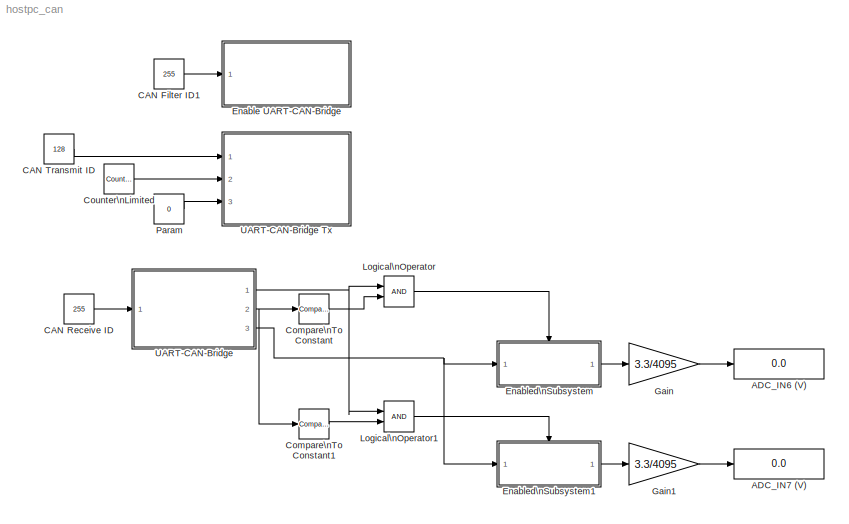
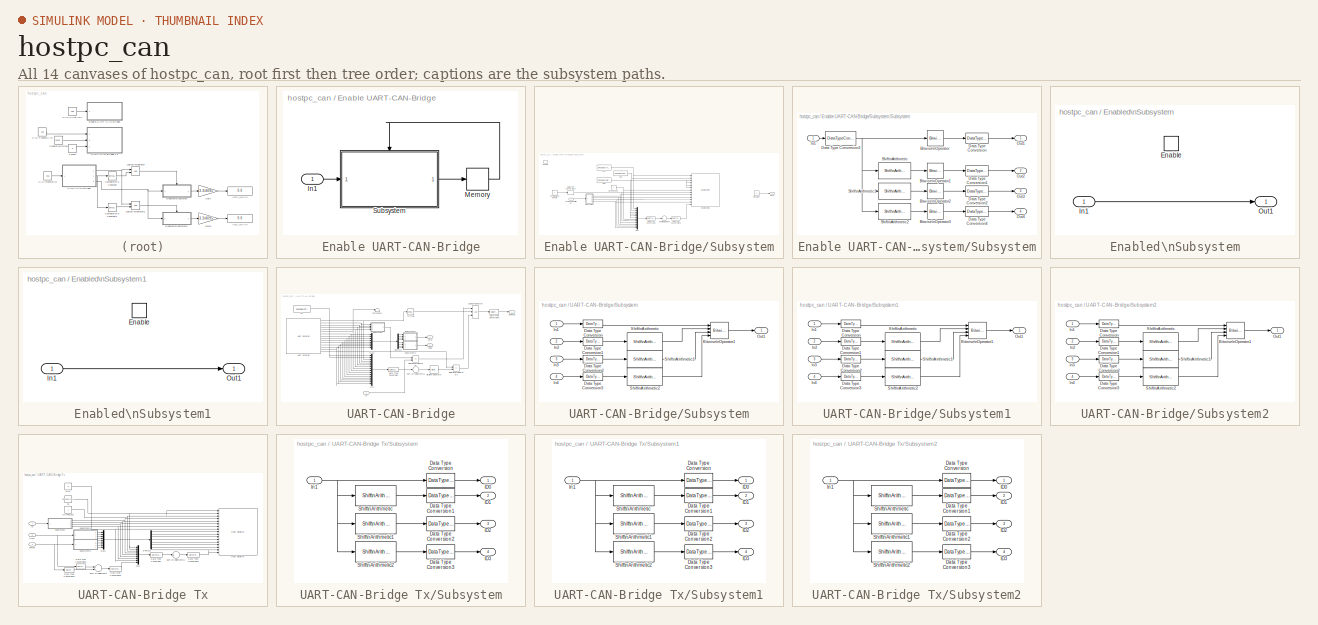
[diagram: thumbnail index - all 14 canvases of the model, root first then tree order]
MODEL hostpc_can
KIND model
BLOCK [Display] ADC_IN6 (V)
  Decimation = 1
  Lockdown = off
  Ports = [1]
BLOCK [Display] ADC_IN7 (V)
  Decimation = 1
  Lockdown = off
  Ports = [1]
BLOCK [Constant] CAN Filter ID1
  OutDataType = fixdt(1, 16)
  OutDataTypeMode = uint32
  OutDataTypeStr = uint32
  OutScaling = 2^0
  Value = 255
BLOCK [Constant] CAN Receive ID
  OutDataType = fixdt(1, 16)
  OutDataTypeMode = uint32
  OutDataTypeStr = uint32
  OutScaling = 2^0
  Value = 255
BLOCK [Constant] CAN Transmit ID
  OutDataType = fixdt(1, 16)
  OutDataTypeMode = uint32
  OutDataTypeStr = uint32
  OutScaling = 2^0
  Value = 128
BLOCK [Reference] Compare\nTo Constant  REF=simulink/Logic and Bit\nOperations/Compare\nTo Constant
  FunctionWithSeparateData = off
  LogicOutDataTypeMode = boolean
  Ports = [1, 1]
  RTWMemSecDataConstants = Inherit from model
  RTWMemSecDataInternal = Inherit from model
  RTWMemSecDataParameters = Inherit from model
  RTWMemSecFuncExecute = Inherit from model
  RTWMemSecFuncInitTerm = Inherit from model
  ShowPortLabels = FromPortIcon
  SourceBlock = simulink/Logic and Bit\nOperations/Compare\nTo Constant
  SourceType = Compare To Constant
  SystemSampleTime = -1
  ZeroCross = off
  const = 0
  relop = ==
BLOCK [Reference] Compare\nTo Constant1  REF=simulink/Logic and Bit\nOperations/Compare\nTo Constant
  FunctionWithSeparateData = off
  LogicOutDataTypeMode = boolean
  Ports = [1, 1]
  RTWMemSecDataConstants = Inherit from model
  RTWMemSecDataInternal = Inherit from model
  RTWMemSecDataParameters = Inherit from model
  RTWMemSecFuncExecute = Inherit from model
  RTWMemSecFuncInitTerm = Inherit from model
  ShowPortLabels = FromPortIcon
  SourceBlock = simulink/Logic and Bit\nOperations/Compare\nTo Constant
  SourceType = Compare To Constant
  SystemSampleTime = -1
  ZeroCross = off
  const = 1
  relop = ==
BLOCK [Reference] Counter\nLimited  REF=simulink/Sources/Counter\nLimited
  FunctionWithSeparateData = off
  Ports = [0, 1]
  RTWMemSecDataConstants = Inherit from model
  RTWMemSecDataInternal = Inherit from model
  RTWMemSecDataParameters = Inherit from model
  RTWMemSecFuncExecute = Inherit from model
  RTWMemSecFuncInitTerm = Inherit from model
  ShowPortLabels = FromPortIcon
  SourceBlock = simulink/Sources/Counter\nLimited
  SourceType = Counter Limited
  SystemSampleTime = -1
  tsamp = -1
  uplimit = 1
BLOCK [SubSystem] Enable UART-CAN-Bridge
  FunctionWithSeparateData = off
  MaskHideContents = off
  MinAlgLoopOccurrences = off
  Opaque = off
  Ports = [1]
  Priority = 0
  PropExecContextOutsideSubsystem = off
  RTWSystemCode = Auto
  RequestExecContextInheritance = off
BLOCK [Inport] Enable UART-CAN-Bridge/In1
  IconDisplay = Port number
BLOCK [Memory] Enable UART-CAN-Bridge/Memory
  InheritSampleTime = on
  LinearizeMemory = on
  X0 = 1
BLOCK [SubSystem] Enable UART-CAN-Bridge/Subsystem
  FunctionWithSeparateData = off
  MaskHideContents = off
  MinAlgLoopOccurrences = off
  Opaque = off
  Ports = [1, 1, 1]
  PropExecContextOutsideSubsystem = off
  RTWSystemCode = Auto
  RequestExecContextInheritance = off
BLOCK [Inport] Enable UART-CAN-Bridge/Subsystem/CAN Receive Filter ID
  IconDisplay = Port number
  OutDataType = fixdt(1, 16)
  OutScaling = 2^0
BLOCK [Constant] Enable UART-CAN-Bridge/Subsystem/Constant
  OutDataType = fixdt(1, 16)
  OutScaling = 2^0
  Value = 0
BLOCK [DataTypeConversion] Enable UART-CAN-Bridge/Subsystem/Data Type Conversion
  OutDataType = fixdt(1, 16)
  OutDataTypeMode = uint32
  OutDataTypeStr = uint32
  OutScaling = 2^0
  RndMeth = Floor
  SaturateOnIntegerOverflow = off
BLOCK [DataTypeConversion] Enable UART-CAN-Bridge/Subsystem/Data Type Conversion1
  OutDataType = fixdt(1, 16)
  OutDataTypeMode = uint8
  OutDataTypeStr = uint8
  OutScaling = 2^0
  RndMeth = Floor
  SaturateOnIntegerOverflow = off
BLOCK [DataTypeConversion] Enable UART-CAN-Bridge/Subsystem/Data Type Conversion2
  OutDataType = fixdt(1, 16)
  OutDataTypeMode = uint8
  OutDataTypeStr = uint8
  OutScaling = 2^0
  RndMeth = Floor
  SaturateOnIntegerOverflow = off
BLOCK [EnablePort] Enable UART-CAN-Bridge/Subsystem/Enable
  Ports = []
BLOCK [Constant] Enable UART-CAN-Bridge/Subsystem/H55
  OutDataType = fixdt(1, 16)
  OutDataTypeMode = uint8
  OutDataTypeStr = uint8
  OutScaling = 2^0
  Value = hex2dec('55')
BLOCK [Constant] Enable UART-CAN-Bridge/Subsystem/H88
  OutDataType = fixdt(1, 16)
  OutDataTypeMode = uint8
  OutDataTypeStr = uint8
  OutScaling = 2^0
  Value = hex2dec('88')
BLOCK [Constant] Enable UART-CAN-Bridge/Subsystem/HAA
  OutDataType = fixdt(1, 16)
  OutDataTypeMode = uint8
  OutDataTypeStr = uint8
  OutScaling = 2^0
  Value = hex2dec('AA')
BLOCK [Reference] Enable UART-CAN-Bridge/Subsystem/Host Serial Tx  REF=amg_usbconverter_n_connect_lib/Host Serial Tx
  Ports = [13]
  SourceBlock = amg_usbconverter_n_connect_lib/Host Serial Tx
  SourceType = amg_usbconverter_n_connect
  asciiformat = '%d %u %x'
  autoport = 'COM3'
  baudrate = 115200
  binheader = ''
  binterminator = ''
  blockid = EnableUARTCANBridgeSubsystemHostSerialTx
  cinputportlabel = 0
  compat = 0
  conf = tx
  coutputportlabel = A
  databits = 8
  enablecustomportlabel = off
  flowcontrol = None
  initialvalues = []
  inputportlabel = {'uint8','uint8','uint8','uint8','uint8','uint8','uint8','uint8','uint8','uint8','uint8','uint8','uint8'}
  inputporttype = [3 3 3 3 3 3 3 3 3 3 3 3 3]
  inputportwidth = [1 1 1 1 1 1 1 1 1 1 1 1 1]
  optionstring = [\"Param1\",\"Param1\"]
  outputportlabel = {}
  outputporttype = []
  outputportwidth = []
  packetmode = Binary
  parity = None
  port = <auto>
  portpinstr = 0
  porttype_double = 0
  porttype_int16 = 0
  porttype_int32 = 0
  porttype_int8 = 0
  porttype_single = 0
  porttype_uint16 = 0
  porttype_uint32 = 0
  porttype_uint8 = 13
  rx_asciiterminator = CRLF (0x0D 0x0A - \"<path>")
  sampletime = inf
  stopbit = 1
  timeout = 2
  transfer = Blocking
  tx_asciiterminator = CRLF (0x0D 0x0A - \"<path>")
BLOCK [Constant] Enable UART-CAN-Bridge/Subsystem/IDTYPE_STD
  OutDataType = fixdt(1, 16)
  OutDataTypeMode = uint8
  OutDataTypeStr = uint8
  OutScaling = 2^0
BLOCK [Mux] Enable UART-CAN-Bridge/Subsystem/Mux
  DisplayOption = bar
  Inputs = 12
  Ports = [12, 1]
BLOCK [Outport] Enable UART-CAN-Bridge/Subsystem/Once
  IconDisplay = Port number
  InitialOutput = 1
  OutDataType = fixdt(1, 16)
  OutScaling = 2^0
BLOCK [Constant] Enable UART-CAN-Bridge/Subsystem/Serial Bridge Enable
  OutDataType = fixdt(1, 16)
  OutDataTypeMode = uint8
  OutDataTypeStr = uint8
  OutScaling = 2^0
BLOCK [SubSystem] Enable UART-CAN-Bridge/Subsystem/Subsystem
  FunctionWithSeparateData = off
  MaskHideContents = off
  MinAlgLoopOccurrences = off
  Opaque = off
  Ports = [1, 4]
  PropExecContextOutsideSubsystem = off
  RTWSystemCode = Auto
  RequestExecContextInheritance = off
BLOCK [Reference] Enable UART-CAN-Bridge/Subsystem/Subsystem/Bitwise\nOperator  REF=simulink/Logic and Bit\nOperations/Bitwise\nOperator
  BitMask = 255
  BitMaskRealWorld = Stored Integer
  NumInputPorts = 1
  Ports = [1, 1]
  SourceBlock = simulink/Logic and Bit\nOperations/Bitwise\nOperator
  SourceType = Bitwise Operator
  UseBitMask = on
  logicop = AND
BLOCK [Reference] Enable UART-CAN-Bridge/Subsystem/Subsystem/Bitwise\nOperator1  REF=simulink/Logic and Bit\nOperations/Bitwise\nOperator
  BitMask = 255
  BitMaskRealWorld = Stored Integer
  NumInputPorts = 1
  Ports = [1, 1]
  SourceBlock = simulink/Logic and Bit\nOperations/Bitwise\nOperator
  SourceType = Bitwise Operator
  UseBitMask = on
  logicop = AND
BLOCK [Reference] Enable UART-CAN-Bridge/Subsystem/Subsystem/Bitwise\nOperator2  REF=simulink/Logic and Bit\nOperations/Bitwise\nOperator
  BitMask = 255
  BitMaskRealWorld = Stored Integer
  NumInputPorts = 1
  Ports = [1, 1]
  SourceBlock = simulink/Logic and Bit\nOperations/Bitwise\nOperator
  SourceType = Bitwise Operator
  UseBitMask = on
  logicop = AND
BLOCK [Reference] Enable UART-CAN-Bridge/Subsystem/Subsystem/Bitwise\nOperator3  REF=simulink/Logic and Bit\nOperations/Bitwise\nOperator
  BitMask = 255
  BitMaskRealWorld = Stored Integer
  NumInputPorts = 1
  Ports = [1, 1]
  SourceBlock = simulink/Logic and Bit\nOperations/Bitwise\nOperator
  SourceType = Bitwise Operator
  UseBitMask = on
  logicop = AND
BLOCK [DataTypeConversion] Enable UART-CAN-Bridge/Subsystem/Subsystem/Data Type Conversion
  OutDataType = fixdt(1, 16)
  OutDataTypeMode = uint8
  OutDataTypeStr = uint8
  OutScaling = 2^0
  RndMeth = Floor
  SaturateOnIntegerOverflow = off
BLOCK [DataTypeConversion] Enable UART-CAN-Bridge/Subsystem/Subsystem/Data Type Conversion1
  OutDataType = fixdt(1, 16)
  OutDataTypeMode = uint8
  OutDataTypeStr = uint8
  OutScaling = 2^0
  RndMeth = Floor
  SaturateOnIntegerOverflow = off
BLOCK [DataTypeConversion] Enable UART-CAN-Bridge/Subsystem/Subsystem/Data Type Conversion2
  OutDataType = fixdt(1, 16)
  OutDataTypeMode = uint8
  OutDataTypeStr = uint8
  OutScaling = 2^0
  RndMeth = Floor
  SaturateOnIntegerOverflow = off
BLOCK [DataTypeConversion] Enable UART-CAN-Bridge/Subsystem/Subsystem/Data Type Conversion3
  OutDataType = fixdt(1, 16)
  OutDataTypeMode = uint32
  OutDataTypeStr = uint32
  OutScaling = 2^0
  RndMeth = Floor
  SaturateOnIntegerOverflow = off
BLOCK [DataTypeConversion] Enable UART-CAN-Bridge/Subsystem/Subsystem/Data Type Conversion4
  OutDataType = fixdt(1, 16)
  OutDataTypeMode = uint8
  OutDataTypeStr = uint8
  OutScaling = 2^0
  RndMeth = Floor
  SaturateOnIntegerOverflow = off
BLOCK [Inport] Enable UART-CAN-Bridge/Subsystem/Subsystem/In1
  IconDisplay = Port number
BLOCK [Outport] Enable UART-CAN-Bridge/Subsystem/Subsystem/Out1
  IconDisplay = Port number
BLOCK [Outport] Enable UART-CAN-Bridge/Subsystem/Subsystem/Out2
  IconDisplay = Port number
  Port = 2
BLOCK [Outport] Enable UART-CAN-Bridge/Subsystem/Subsystem/Out3
  IconDisplay = Port number
  Port = 3
BLOCK [Outport] Enable UART-CAN-Bridge/Subsystem/Subsystem/Out4
  IconDisplay = Port number
  Port = 4
BLOCK [Reference] Enable UART-CAN-Bridge/Subsystem/Subsystem/Shift\nArithmetic  REF=simulink/Logic and Bit\nOperations/Shift\nArithmetic
  FunctionWithSeparateData = off
  Ports = [1, 1]
  RTWMemSecDataConstants = Inherit from model
  RTWMemSecDataInternal = Inherit from model
  RTWMemSecDataParameters = Inherit from model
  RTWMemSecFuncExecute = Inherit from model
  RTWMemSecFuncInitTerm = Inherit from model
  ShowPortLabels = FromPortIcon
  SourceBlock = simulink/Logic and Bit\nOperations/Shift\nArithmetic
  SourceType = Shift Arithmetic
  SystemSampleTime = -1
  nBinPtShiftRight = 0
  nBitShiftRight = 8
BLOCK [Reference] Enable UART-CAN-Bridge/Subsystem/Subsystem/Shift\nArithmetic1  REF=simulink/Logic and Bit\nOperations/Shift\nArithmetic
  FunctionWithSeparateData = off
  Ports = [1, 1]
  RTWMemSecDataConstants = Inherit from model
  RTWMemSecDataInternal = Inherit from model
  RTWMemSecDataParameters = Inherit from model
  RTWMemSecFuncExecute = Inherit from model
  RTWMemSecFuncInitTerm = Inherit from model
  ShowPortLabels = FromPortIcon
  SourceBlock = simulink/Logic and Bit\nOperations/Shift\nArithmetic
  SourceType = Shift Arithmetic
  SystemSampleTime = -1
  nBinPtShiftRight = 0
  nBitShiftRight = 16
BLOCK [Reference] Enable UART-CAN-Bridge/Subsystem/Subsystem/Shift\nArithmetic2  REF=simulink/Logic and Bit\nOperations/Shift\nArithmetic
  FunctionWithSeparateData = off
  Ports = [1, 1]
  RTWMemSecDataConstants = Inherit from model
  RTWMemSecDataInternal = Inherit from model
  RTWMemSecDataParameters = Inherit from model
  RTWMemSecFuncExecute = Inherit from model
  RTWMemSecFuncInitTerm = Inherit from model
  ShowPortLabels = FromPortIcon
  SourceBlock = simulink/Logic and Bit\nOperations/Shift\nArithmetic
  SourceType = Shift Arithmetic
  SystemSampleTime = -1
  nBinPtShiftRight = 0
  nBitShiftRight = 24
BLOCK [Sum] Enable UART-CAN-Bridge/Subsystem/Sum of\nElements
  InputSameDT = off
  Inputs = +
  OutDataType = fixdt(1, 16)
  OutDataTypeMode = Inherit via internal rule
  OutDataTypeStr = Inherit: Inherit via internal rule
  OutScaling = 2^-10
  Ports = [1, 1]
  SaturateOnIntegerOverflow = off
BLOCK [SubSystem] Enabled\nSubsystem
  FunctionWithSeparateData = off
  MaskHideContents = off
  MinAlgLoopOccurrences = off
  Opaque = off
  Ports = [1, 1, 1]
  PropExecContextOutsideSubsystem = off
  RTWSystemCode = Auto
  RequestExecContextInheritance = off
  TreatAsAtomicUnit = on
BLOCK [EnablePort] Enabled\nSubsystem/Enable
  Ports = []
BLOCK [Inport] Enabled\nSubsystem/In1
  IconDisplay = Port number
  OutDataType = fixdt(1, 16)
  OutScaling = 2^0
BLOCK [Outport] Enabled\nSubsystem/Out1
  IconDisplay = Port number
  OutDataType = fixdt(1, 16)
  OutScaling = 2^0
BLOCK [SubSystem] Enabled\nSubsystem1
  FunctionWithSeparateData = off
  MaskHideContents = off
  MinAlgLoopOccurrences = off
  Opaque = off
  Ports = [1, 1, 1]
  PropExecContextOutsideSubsystem = off
  RTWSystemCode = Auto
  RequestExecContextInheritance = off
  TreatAsAtomicUnit = on
BLOCK [EnablePort] Enabled\nSubsystem1/Enable
  Ports = []
BLOCK [Inport] Enabled\nSubsystem1/In1
  IconDisplay = Port number
  OutDataType = fixdt(1, 16)
  OutScaling = 2^0
BLOCK [Outport] Enabled\nSubsystem1/Out1
  IconDisplay = Port number
  OutDataType = fixdt(1, 16)
  OutScaling = 2^0
BLOCK [Gain] Gain
  Gain = 3.3/4095
  OutDataType = fixdt(1, 16)
  OutDataTypeMode = Inherit via internal rule
  OutDataTypeStr = Inherit: Inherit via internal rule
  OutScaling = 2^0
  ParamDataTypeStr = Inherit: Inherit via internal rule
  ParameterDataType = fixdt(1, 16)
  ParameterDataTypeMode = Inherit via internal rule
  ParameterScaling = 2^0
  SaturateOnIntegerOverflow = off
BLOCK [Gain] Gain1
  Gain = 3.3/4095
  OutDataType = fixdt(1, 16)
  OutDataTypeMode = Inherit via internal rule
  OutDataTypeStr = Inherit: Inherit via internal rule
  OutScaling = 2^0
  ParamDataTypeStr = Inherit: Inherit via internal rule
  ParameterDataType = fixdt(1, 16)
  ParameterDataTypeMode = Inherit via internal rule
  ParameterScaling = 2^0
  SaturateOnIntegerOverflow = off
BLOCK [Logic] Logical\nOperator
  AllPortsSameDT = off
  LogicDataType = fixdt(0, 8)
  OutDataTypeMode = boolean
  OutDataTypeStr = boolean
  Ports = [2, 1]
BLOCK [Logic] Logical\nOperator1
  AllPortsSameDT = off
  LogicDataType = fixdt(0, 8)
  OutDataTypeMode = boolean
  OutDataTypeStr = boolean
  Ports = [2, 1]
BLOCK [Constant] Param
  OutDataType = fixdt(1, 16)
  OutDataTypeMode = uint32
  OutDataTypeStr = uint32
  OutScaling = 2^0
  Value = 0
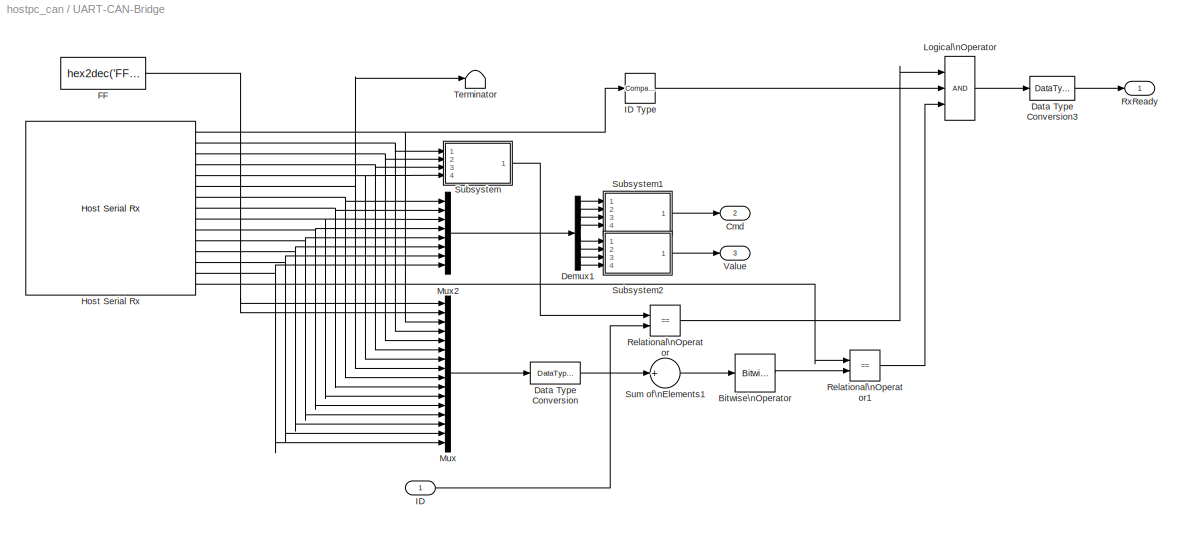
BLOCK [SubSystem] UART-CAN-Bridge
  FunctionWithSeparateData = off
  MaskHideContents = off
  MinAlgLoopOccurrences = off
  Opaque = off
  Ports = [1, 3]
  Priority = 2
  PropExecContextOutsideSubsystem = off
  RTWSystemCode = Auto
  RequestExecContextInheritance = off
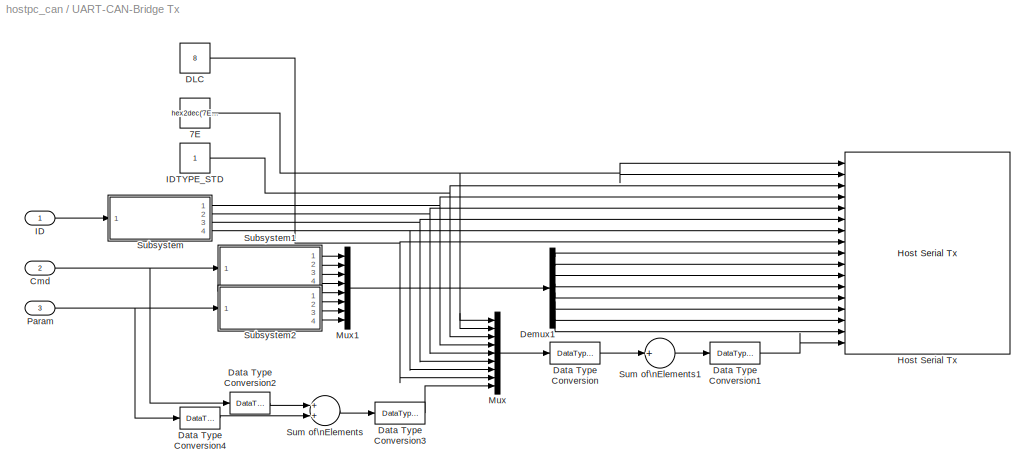
BLOCK [SubSystem] UART-CAN-Bridge Tx
  FunctionWithSeparateData = off
  MaskHideContents = off
  MinAlgLoopOccurrences = off
  Opaque = off
  Ports = [3]
  Priority = 1
  PropExecContextOutsideSubsystem = off
  RTWSystemCode = Auto
  RequestExecContextInheritance = off
BLOCK [Constant] UART-CAN-Bridge Tx/7E
  OutDataType = fixdt(1, 16)
  OutDataTypeMode = uint8
  OutDataTypeStr = uint8
  OutScaling = 2^0
  Value = hex2dec('7E')
BLOCK [Inport] UART-CAN-Bridge Tx/Cmd
  IconDisplay = Port number
  Port = 2
BLOCK [Constant] UART-CAN-Bridge Tx/DLC
  OutDataType = fixdt(1, 16)
  OutDataTypeMode = uint8
  OutDataTypeStr = uint8
  OutScaling = 2^0
  Value = 8
BLOCK [DataTypeConversion] UART-CAN-Bridge Tx/Data Type Conversion
  OutDataType = fixdt(1, 16)
  OutDataTypeMode = uint32
  OutDataTypeStr = uint32
  OutScaling = 2^0
  RndMeth = Floor
  SaturateOnIntegerOverflow = off
BLOCK [DataTypeConversion] UART-CAN-Bridge Tx/Data Type Conversion1
  OutDataType = fixdt(1, 16)
  OutDataTypeMode = uint8
  OutDataTypeStr = uint8
  OutScaling = 2^0
  RndMeth = Floor
  SaturateOnIntegerOverflow = off
BLOCK [DataTypeConversion] UART-CAN-Bridge Tx/Data Type Conversion2
  OutDataType = fixdt(1, 16)
  OutDataTypeMode = uint32
  OutDataTypeStr = uint32
  OutScaling = 2^0
  RndMeth = Floor
  SaturateOnIntegerOverflow = off
BLOCK [DataTypeConversion] UART-CAN-Bridge Tx/Data Type Conversion3
  OutDataType = fixdt(1, 16)
  OutDataTypeMode = uint8
  OutDataTypeStr = uint8
  OutScaling = 2^0
  RndMeth = Floor
  SaturateOnIntegerOverflow = off
BLOCK [DataTypeConversion] UART-CAN-Bridge Tx/Data Type Conversion4
  OutDataType = fixdt(1, 16)
  OutDataTypeMode = uint32
  OutDataTypeStr = uint32
  OutScaling = 2^0
  RndMeth = Floor
  SaturateOnIntegerOverflow = off
BLOCK [Demux] UART-CAN-Bridge Tx/Demux1
  DisplayOption = bar
  Outputs = 8
  Ports = [1, 8]
BLOCK [Reference] UART-CAN-Bridge Tx/Host Serial Tx  REF=amg_usbconverter_n_connect_lib/Host Serial Tx
  Ports = [17]
  SourceBlock = amg_usbconverter_n_connect_lib/Host Serial Tx
  SourceType = amg_usbconverter_n_connect
  asciiformat = '%d %u %x'
  autoport = 'COM3'
  baudrate = 115200
  binheader = ''
  binterminator = ''
  blockid = UARTCANBridgeTxHostSerialTx
  cinputportlabel = 0
  compat = 0
  conf = tx
  coutputportlabel = A
  databits = 8
  enablecustomportlabel = off
  flowcontrol = None
  initialvalues = []
  inputportlabel = {'uint8','uint8','uint8','uint8','uint8','uint8','uint8','uint8','uint8','uint8','uint8','uint8','uint8','uint8','uint8','uint8','uint8'}
  inputporttype = [3 3 3 3 3 3 3 3 3 3 3 3 3 3 3 3 3]
  inputportwidth = [1 1 1 1 1 1 1 1 1 1 1 1 1 1 1 1 1]
  optionstring = [\"Param1\",\"Param1\"]
  outputportlabel = {}
  outputporttype = []
  outputportwidth = []
  packetmode = Binary
  parity = None
  port = <auto>
  portpinstr = 0
  porttype_double = 0
  porttype_int16 = 0
  porttype_int32 = 0
  porttype_int8 = 0
  porttype_single = 0
  porttype_uint16 = 0
  porttype_uint32 = 0
  porttype_uint8 = 17
  rx_asciiterminator = CRLF (0x0D 0x0A - \"<path>")
  sampletime = inf
  stopbit = 1
  timeout = 2
  transfer = Blocking
  tx_asciiterminator = CRLF (0x0D 0x0A - \"<path>")
BLOCK [Inport] UART-CAN-Bridge Tx/ID
  IconDisplay = Port number
BLOCK [Constant] UART-CAN-Bridge Tx/IDTYPE_STD
  OutDataType = fixdt(1, 16)
  OutDataTypeMode = uint8
  OutDataTypeStr = uint8
  OutScaling = 2^0
BLOCK [Mux] UART-CAN-Bridge Tx/Mux
  DisplayOption = bar
  Inputs = 9
  Ports = [9, 1]
BLOCK [Mux] UART-CAN-Bridge Tx/Mux1
  DisplayOption = bar
  Inputs = 8
  Ports = [8, 1]
BLOCK [Inport] UART-CAN-Bridge Tx/Param
  IconDisplay = Port number
  Port = 3
BLOCK [SubSystem] UART-CAN-Bridge Tx/Subsystem
  FunctionWithSeparateData = off
  MaskHideContents = off
  MinAlgLoopOccurrences = off
  Opaque = off
  Ports = [1, 4]
  PropExecContextOutsideSubsystem = off
  RTWSystemCode = Auto
  RequestExecContextInheritance = off
BLOCK [DataTypeConversion] UART-CAN-Bridge Tx/Subsystem/Data Type Conversion
  OutDataType = fixdt(1, 16)
  OutDataTypeMode = uint8
  OutDataTypeStr = uint8
  OutScaling = 2^0
  RndMeth = Floor
  SaturateOnIntegerOverflow = off
BLOCK [DataTypeConversion] UART-CAN-Bridge Tx/Subsystem/Data Type Conversion1
  OutDataType = fixdt(1, 16)
  OutDataTypeMode = uint8
  OutDataTypeStr = uint8
  OutScaling = 2^0
  RndMeth = Floor
  SaturateOnIntegerOverflow = off
BLOCK [DataTypeConversion] UART-CAN-Bridge Tx/Subsystem/Data Type Conversion2
  OutDataType = fixdt(1, 16)
  OutDataTypeMode = uint8
  OutDataTypeStr = uint8
  OutScaling = 2^0
  RndMeth = Floor
  SaturateOnIntegerOverflow = off
BLOCK [DataTypeConversion] UART-CAN-Bridge Tx/Subsystem/Data Type Conversion3
  OutDataType = fixdt(1, 16)
  OutDataTypeMode = uint8
  OutDataTypeStr = uint8
  OutScaling = 2^0
  RndMeth = Floor
  SaturateOnIntegerOverflow = off
BLOCK [Outport] UART-CAN-Bridge Tx/Subsystem/ID0
  IconDisplay = Port number
  OutDataType = fixdt(1, 16)
  OutScaling = 2^0
BLOCK [Outport] UART-CAN-Bridge Tx/Subsystem/ID1
  IconDisplay = Port number
  OutDataType = fixdt(1, 16)
  OutScaling = 2^0
  Port = 2
BLOCK [Outport] UART-CAN-Bridge Tx/Subsystem/ID2
  IconDisplay = Port number
  OutDataType = fixdt(1, 16)
  OutScaling = 2^0
  Port = 3
BLOCK [Outport] UART-CAN-Bridge Tx/Subsystem/ID3
  IconDisplay = Port number
  OutDataType = fixdt(1, 16)
  OutScaling = 2^0
  Port = 4
BLOCK [Inport] UART-CAN-Bridge Tx/Subsystem/In1
  IconDisplay = Port number
  OutDataType = fixdt(1, 16)
  OutScaling = 2^0
BLOCK [Reference] UART-CAN-Bridge Tx/Subsystem/Shift\nArithmetic  REF=simulink/Logic and Bit\nOperations/Shift\nArithmetic
  FunctionWithSeparateData = off
  Ports = [1, 1]
  RTWMemSecDataConstants = Inherit from model
  RTWMemSecDataInternal = Inherit from model
  RTWMemSecDataParameters = Inherit from model
  RTWMemSecFuncExecute = Inherit from model
  RTWMemSecFuncInitTerm = Inherit from model
  ShowPortLabels = FromPortIcon
  SourceBlock = simulink/Logic and Bit\nOperations/Shift\nArithmetic
  SourceType = Shift Arithmetic
  SystemSampleTime = -1
  nBinPtShiftRight = 0
  nBitShiftRight = 8
BLOCK [Reference] UART-CAN-Bridge Tx/Subsystem/Shift\nArithmetic1  REF=simulink/Logic and Bit\nOperations/Shift\nArithmetic
  FunctionWithSeparateData = off
  Ports = [1, 1]
  RTWMemSecDataConstants = Inherit from model
  RTWMemSecDataInternal = Inherit from model
  RTWMemSecDataParameters = Inherit from model
  RTWMemSecFuncExecute = Inherit from model
  RTWMemSecFuncInitTerm = Inherit from model
  ShowPortLabels = FromPortIcon
  SourceBlock = simulink/Logic and Bit\nOperations/Shift\nArithmetic
  SourceType = Shift Arithmetic
  SystemSampleTime = -1
  nBinPtShiftRight = 0
  nBitShiftRight = 16
BLOCK [Reference] UART-CAN-Bridge Tx/Subsystem/Shift\nArithmetic2  REF=simulink/Logic and Bit\nOperations/Shift\nArithmetic
  FunctionWithSeparateData = off
  Ports = [1, 1]
  RTWMemSecDataConstants = Inherit from model
  RTWMemSecDataInternal = Inherit from model
  RTWMemSecDataParameters = Inherit from model
  RTWMemSecFuncExecute = Inherit from model
  RTWMemSecFuncInitTerm = Inherit from model
  ShowPortLabels = FromPortIcon
  SourceBlock = simulink/Logic and Bit\nOperations/Shift\nArithmetic
  SourceType = Shift Arithmetic
  SystemSampleTime = -1
  nBinPtShiftRight = 0
  nBitShiftRight = 24
BLOCK [SubSystem] UART-CAN-Bridge Tx/Subsystem1
  FunctionWithSeparateData = off
  MaskHideContents = off
  MinAlgLoopOccurrences = off
  Opaque = off
  Ports = [1, 4]
  PropExecContextOutsideSubsystem = off
  RTWSystemCode = Auto
  RequestExecContextInheritance = off
BLOCK [DataTypeConversion] UART-CAN-Bridge Tx/Subsystem1/Data Type Conversion
  OutDataType = fixdt(1, 16)
  OutDataTypeMode = uint8
  OutDataTypeStr = uint8
  OutScaling = 2^0
  RndMeth = Floor
  SaturateOnIntegerOverflow = off
BLOCK [DataTypeConversion] UART-CAN-Bridge Tx/Subsystem1/Data Type Conversion1
  OutDataType = fixdt(1, 16)
  OutDataTypeMode = uint8
  OutDataTypeStr = uint8
  OutScaling = 2^0
  RndMeth = Floor
  SaturateOnIntegerOverflow = off
BLOCK [DataTypeConversion] UART-CAN-Bridge Tx/Subsystem1/Data Type Conversion2
  OutDataType = fixdt(1, 16)
  OutDataTypeMode = uint8
  OutDataTypeStr = uint8
  OutScaling = 2^0
  RndMeth = Floor
  SaturateOnIntegerOverflow = off
BLOCK [DataTypeConversion] UART-CAN-Bridge Tx/Subsystem1/Data Type Conversion3
  OutDataType = fixdt(1, 16)
  OutDataTypeMode = uint8
  OutDataTypeStr = uint8
  OutScaling = 2^0
  RndMeth = Floor
  SaturateOnIntegerOverflow = off
BLOCK [Outport] UART-CAN-Bridge Tx/Subsystem1/ID0
  IconDisplay = Port number
  OutDataType = fixdt(1, 16)
  OutScaling = 2^0
BLOCK [Outport] UART-CAN-Bridge Tx/Subsystem1/ID1
  IconDisplay = Port number
  OutDataType = fixdt(1, 16)
  OutScaling = 2^0
  Port = 2
BLOCK [Outport] UART-CAN-Bridge Tx/Subsystem1/ID2
  IconDisplay = Port number
  OutDataType = fixdt(1, 16)
  OutScaling = 2^0
  Port = 3
BLOCK [Outport] UART-CAN-Bridge Tx/Subsystem1/ID3
  IconDisplay = Port number
  OutDataType = fixdt(1, 16)
  OutScaling = 2^0
  Port = 4
BLOCK [Inport] UART-CAN-Bridge Tx/Subsystem1/In1
  IconDisplay = Port number
  OutDataType = fixdt(1, 16)
  OutScaling = 2^0
BLOCK [Reference] UART-CAN-Bridge Tx/Subsystem1/Shift\nArithmetic  REF=simulink/Logic and Bit\nOperations/Shift\nArithmetic
  FunctionWithSeparateData = off
  Ports = [1, 1]
  RTWMemSecDataConstants = Inherit from model
  RTWMemSecDataInternal = Inherit from model
  RTWMemSecDataParameters = Inherit from model
  RTWMemSecFuncExecute = Inherit from model
  RTWMemSecFuncInitTerm = Inherit from model
  ShowPortLabels = FromPortIcon
  SourceBlock = simulink/Logic and Bit\nOperations/Shift\nArithmetic
  SourceType = Shift Arithmetic
  SystemSampleTime = -1
  nBinPtShiftRight = 0
  nBitShiftRight = 8
BLOCK [Reference] UART-CAN-Bridge Tx/Subsystem1/Shift\nArithmetic1  REF=simulink/Logic and Bit\nOperations/Shift\nArithmetic
  FunctionWithSeparateData = off
  Ports = [1, 1]
  RTWMemSecDataConstants = Inherit from model
  RTWMemSecDataInternal = Inherit from model
  RTWMemSecDataParameters = Inherit from model
  RTWMemSecFuncExecute = Inherit from model
  RTWMemSecFuncInitTerm = Inherit from model
  ShowPortLabels = FromPortIcon
  SourceBlock = simulink/Logic and Bit\nOperations/Shift\nArithmetic
  SourceType = Shift Arithmetic
  SystemSampleTime = -1
  nBinPtShiftRight = 0
  nBitShiftRight = 16
BLOCK [Reference] UART-CAN-Bridge Tx/Subsystem1/Shift\nArithmetic2  REF=simulink/Logic and Bit\nOperations/Shift\nArithmetic
  FunctionWithSeparateData = off
  Ports = [1, 1]
  RTWMemSecDataConstants = Inherit from model
  RTWMemSecDataInternal = Inherit from model
  RTWMemSecDataParameters = Inherit from model
  RTWMemSecFuncExecute = Inherit from model
  RTWMemSecFuncInitTerm = Inherit from model
  ShowPortLabels = FromPortIcon
  SourceBlock = simulink/Logic and Bit\nOperations/Shift\nArithmetic
  SourceType = Shift Arithmetic
  SystemSampleTime = -1
  nBinPtShiftRight = 0
  nBitShiftRight = 24
BLOCK [SubSystem] UART-CAN-Bridge Tx/Subsystem2
  FunctionWithSeparateData = off
  MaskHideContents = off
  MinAlgLoopOccurrences = off
  Opaque = off
  Ports = [1, 4]
  PropExecContextOutsideSubsystem = off
  RTWSystemCode = Auto
  RequestExecContextInheritance = off
BLOCK [DataTypeConversion] UART-CAN-Bridge Tx/Subsystem2/Data Type Conversion
  OutDataType = fixdt(1, 16)
  OutDataTypeMode = uint8
  OutDataTypeStr = uint8
  OutScaling = 2^0
  RndMeth = Floor
  SaturateOnIntegerOverflow = off
BLOCK [DataTypeConversion] UART-CAN-Bridge Tx/Subsystem2/Data Type Conversion1
  OutDataType = fixdt(1, 16)
  OutDataTypeMode = uint8
  OutDataTypeStr = uint8
  OutScaling = 2^0
  RndMeth = Floor
  SaturateOnIntegerOverflow = off
BLOCK [DataTypeConversion] UART-CAN-Bridge Tx/Subsystem2/Data Type Conversion2
  OutDataType = fixdt(1, 16)
  OutDataTypeMode = uint8
  OutDataTypeStr = uint8
  OutScaling = 2^0
  RndMeth = Floor
  SaturateOnIntegerOverflow = off
BLOCK [DataTypeConversion] UART-CAN-Bridge Tx/Subsystem2/Data Type Conversion3
  OutDataType = fixdt(1, 16)
  OutDataTypeMode = uint8
  OutDataTypeStr = uint8
  OutScaling = 2^0
  RndMeth = Floor
  SaturateOnIntegerOverflow = off
BLOCK [Outport] UART-CAN-Bridge Tx/Subsystem2/ID0
  IconDisplay = Port number
  OutDataType = fixdt(1, 16)
  OutScaling = 2^0
BLOCK [Outport] UART-CAN-Bridge Tx/Subsystem2/ID1
  IconDisplay = Port number
  OutDataType = fixdt(1, 16)
  OutScaling = 2^0
  Port = 2
BLOCK [Outport] UART-CAN-Bridge Tx/Subsystem2/ID2
  IconDisplay = Port number
  OutDataType = fixdt(1, 16)
  OutScaling = 2^0
  Port = 3
BLOCK [Outport] UART-CAN-Bridge Tx/Subsystem2/ID3
  IconDisplay = Port number
  OutDataType = fixdt(1, 16)
  OutScaling = 2^0
  Port = 4
BLOCK [Inport] UART-CAN-Bridge Tx/Subsystem2/In1
  IconDisplay = Port number
  OutDataType = fixdt(1, 16)
  OutScaling = 2^0
BLOCK [Reference] UART-CAN-Bridge Tx/Subsystem2/Shift\nArithmetic  REF=simulink/Logic and Bit\nOperations/Shift\nArithmetic
  FunctionWithSeparateData = off
  Ports = [1, 1]
  RTWMemSecDataConstants = Inherit from model
  RTWMemSecDataInternal = Inherit from model
  RTWMemSecDataParameters = Inherit from model
  RTWMemSecFuncExecute = Inherit from model
  RTWMemSecFuncInitTerm = Inherit from model
  ShowPortLabels = FromPortIcon
  SourceBlock = simulink/Logic and Bit\nOperations/Shift\nArithmetic
  SourceType = Shift Arithmetic
  SystemSampleTime = -1
  nBinPtShiftRight = 0
  nBitShiftRight = 8
BLOCK [Reference] UART-CAN-Bridge Tx/Subsystem2/Shift\nArithmetic1  REF=simulink/Logic and Bit\nOperations/Shift\nArithmetic
  FunctionWithSeparateData = off
  Ports = [1, 1]
  RTWMemSecDataConstants = Inherit from model
  RTWMemSecDataInternal = Inherit from model
  RTWMemSecDataParameters = Inherit from model
  RTWMemSecFuncExecute = Inherit from model
  RTWMemSecFuncInitTerm = Inherit from model
  ShowPortLabels = FromPortIcon
  SourceBlock = simulink/Logic and Bit\nOperations/Shift\nArithmetic
  SourceType = Shift Arithmetic
  SystemSampleTime = -1
  nBinPtShiftRight = 0
  nBitShiftRight = 16
BLOCK [Reference] UART-CAN-Bridge Tx/Subsystem2/Shift\nArithmetic2  REF=simulink/Logic and Bit\nOperations/Shift\nArithmetic
  FunctionWithSeparateData = off
  Ports = [1, 1]
  RTWMemSecDataConstants = Inherit from model
  RTWMemSecDataInternal = Inherit from model
  RTWMemSecDataParameters = Inherit from model
  RTWMemSecFuncExecute = Inherit from model
  RTWMemSecFuncInitTerm = Inherit from model
  ShowPortLabels = FromPortIcon
  SourceBlock = simulink/Logic and Bit\nOperations/Shift\nArithmetic
  SourceType = Shift Arithmetic
  SystemSampleTime = -1
  nBinPtShiftRight = 0
  nBitShiftRight = 24
BLOCK [Sum] UART-CAN-Bridge Tx/Sum of\nElements
  InputSameDT = off
  OutDataType = fixdt(1, 16)
  OutDataTypeMode = Inherit via internal rule
  OutDataTypeStr = Inherit: Inherit via internal rule
  OutScaling = 2^-10
  Ports = [2, 1]
  SaturateOnIntegerOverflow = off
BLOCK [Sum] UART-CAN-Bridge Tx/Sum of\nElements1
  InputSameDT = off
  Inputs = +
  OutDataType = fixdt(1, 16)
  OutDataTypeMode = Inherit via internal rule
  OutDataTypeStr = Inherit: Inherit via internal rule
  OutScaling = 2^-10
  Ports = [1, 1]
  SaturateOnIntegerOverflow = off
BLOCK [Reference] UART-CAN-Bridge/Bitwise\nOperator  REF=simulink/Logic and Bit\nOperations/Bitwise\nOperator
  BitMask = 255
  BitMaskRealWorld = Stored Integer
  NumInputPorts = 1
  Ports = [1, 1]
  SourceBlock = simulink/Logic and Bit\nOperations/Bitwise\nOperator
  SourceType = Bitwise Operator
  UseBitMask = on
  logicop = AND
BLOCK [Outport] UART-CAN-Bridge/Cmd
  IconDisplay = Port number
  Port = 2
BLOCK [DataTypeConversion] UART-CAN-Bridge/Data Type Conversion
  OutDataType = fixdt(1, 16)
  OutDataTypeMode = uint32
  OutDataTypeStr = uint32
  OutScaling = 2^0
  RndMeth = Floor
  SaturateOnIntegerOverflow = off
BLOCK [DataTypeConversion] UART-CAN-Bridge/Data Type Conversion3
  OutDataType = fixdt(1, 16)
  OutDataTypeMode = uint32
  OutDataTypeStr = uint32
  OutScaling = 2^0
  RndMeth = Floor
  SaturateOnIntegerOverflow = off
BLOCK [Demux] UART-CAN-Bridge/Demux1
  DisplayOption = bar
  Outputs = 8
  Ports = [1, 8]
BLOCK [Constant] UART-CAN-Bridge/FF
  OutDataType = fixdt(1, 16)
  OutDataTypeMode = uint8
  OutDataTypeStr = uint8
  OutScaling = 2^0
  Value = hex2dec('FF')
BLOCK [Reference] UART-CAN-Bridge/Host Serial Rx  REF=amg_usbconverter_n_connect_lib/Host Serial Rx
  Ports = [0, 15]
  SourceBlock = amg_usbconverter_n_connect_lib/Host Serial Rx
  SourceType = amg_usbconverter_n_connect
  asciiformat = '%d %u %x'
  autoport = 'COM3'
  baudrate = 115200
  binheader = 'FF FF'
  binterminator = ''
  blockid = UARTCANBridgeHostSerialRx
  cinputportlabel = 0
  compat = 0
  conf = rx
  coutputportlabel = A
  databits = 8
  enablecustomportlabel = off
  flowcontrol = None
  initialvalues = [0]
  inputportlabel = {}
  inputporttype = []
  inputportwidth = []
  optionstring = [\"Param1\",\"Param1\"]
  outputportlabel = {'uint8','uint8','uint8','uint8','uint8','uint8','uint8','uint8','uint8','uint8','uint8','uint8','uint8','uint8','uint8'}
  outputporttype = [3 3 3 3 3 3 3 3 3 3 3 3 3 3 3]
  outputportwidth = [1 1 1 1 1 1 1 1 1 1 1 1 1 1 1]
  packetmode = Binary
  parity = None
  port = <auto>
  portpinstr = 0
  porttype_double = 0
  porttype_int16 = 0
  porttype_int32 = 0
  porttype_int8 = 0
  porttype_single = 0
  porttype_uint16 = 0
  porttype_uint32 = 0
  porttype_uint8 = 15
  rx_asciiterminator = CRLF (0x0D 0x0A - \"<path>")
  sampletime = inf
  stopbit = 1
  timeout = 2
  transfer = Blocking
  tx_asciiterminator = CRLF (0x0D 0x0A - \"<path>")
BLOCK [Inport] UART-CAN-Bridge/ID
  IconDisplay = Port number
  OutDataType = fixdt(1, 16)
  OutScaling = 2^0
BLOCK [Reference] UART-CAN-Bridge/ID Type  REF=simulink/Logic and Bit\nOperations/Compare\nTo Constant
  FunctionWithSeparateData = off
  LogicOutDataTypeMode = uint8
  Ports = [1, 1]
  RTWMemSecDataConstants = Inherit from model
  RTWMemSecDataInternal = Inherit from model
  RTWMemSecDataParameters = Inherit from model
  RTWMemSecFuncExecute = Inherit from model
  RTWMemSecFuncInitTerm = Inherit from model
  ShowPortLabels = FromPortIcon
  SourceBlock = simulink/Logic and Bit\nOperations/Compare\nTo Constant
  SourceType = Compare To Constant
  SystemSampleTime = -1
  ZeroCross = off
  const = 1
  relop = ==
BLOCK [Logic] UART-CAN-Bridge/Logical\nOperator
  AllPortsSameDT = off
  Inputs = 3
  LogicDataType = fixdt(0, 8)
  OutDataTypeMode = boolean
  OutDataTypeStr = boolean
  Ports = [3, 1]
BLOCK [Mux] UART-CAN-Bridge/Mux
  DisplayOption = bar
  Inputs = 16
  Ports = [16, 1]
BLOCK [Mux] UART-CAN-Bridge/Mux2
  DisplayOption = bar
  Inputs = 8
  Ports = [8, 1]
BLOCK [RelationalOperator] UART-CAN-Bridge/Relational\nOperator
  InputSameDT = off
  LogicDataType = fixdt(0, 8)
  LogicOutDataTypeMode = boolean
  Operator = ==
  OutDataTypeStr = boolean
BLOCK [RelationalOperator] UART-CAN-Bridge/Relational\nOperator1
  InputSameDT = off
  LogicDataType = fixdt(0, 8)
  LogicOutDataTypeMode = boolean
  Operator = ==
  OutDataTypeStr = boolean
BLOCK [Outport] UART-CAN-Bridge/RxReady
  IconDisplay = Port number
BLOCK [SubSystem] UART-CAN-Bridge/Subsystem
  FunctionWithSeparateData = off
  MaskHideContents = off
  MinAlgLoopOccurrences = off
  Opaque = off
  Ports = [4, 1]
  PropExecContextOutsideSubsystem = off
  RTWSystemCode = Auto
  RequestExecContextInheritance = off
BLOCK [Reference] UART-CAN-Bridge/Subsystem/Bitwise\nOperator1  REF=simulink/Logic and Bit\nOperations/Bitwise\nOperator
  BitMask = bin2dec('11011001')
  BitMaskRealWorld = Stored Integer
  NumInputPorts = 4
  Ports = [4, 1]
  SourceBlock = simulink/Logic and Bit\nOperations/Bitwise\nOperator
  SourceType = Bitwise Operator
  UseBitMask = off
  logicop = OR
BLOCK [DataTypeConversion] UART-CAN-Bridge/Subsystem/Data Type Conversion
  OutDataType = fixdt(1, 16)
  OutDataTypeMode = uint32
  OutDataTypeStr = uint32
  OutScaling = 2^0
  RndMeth = Floor
  SaturateOnIntegerOverflow = off
BLOCK [DataTypeConversion] UART-CAN-Bridge/Subsystem/Data Type Conversion1
  OutDataType = fixdt(1, 16)
  OutDataTypeMode = uint32
  OutDataTypeStr = uint32
  OutScaling = 2^0
  RndMeth = Floor
  SaturateOnIntegerOverflow = off
BLOCK [DataTypeConversion] UART-CAN-Bridge/Subsystem/Data Type Conversion2
  OutDataType = fixdt(1, 16)
  OutDataTypeMode = uint32
  OutDataTypeStr = uint32
  OutScaling = 2^0
  RndMeth = Floor
  SaturateOnIntegerOverflow = off
BLOCK [DataTypeConversion] UART-CAN-Bridge/Subsystem/Data Type Conversion3
  OutDataType = fixdt(1, 16)
  OutDataTypeMode = uint32
  OutDataTypeStr = uint32
  OutScaling = 2^0
  RndMeth = Floor
  SaturateOnIntegerOverflow = off
BLOCK [Inport] UART-CAN-Bridge/Subsystem/In1
  IconDisplay = Port number
  OutDataType = fixdt(1, 16)
  OutScaling = 2^0
BLOCK [Inport] UART-CAN-Bridge/Subsystem/In2
  IconDisplay = Port number
  OutDataType = fixdt(1, 16)
  OutScaling = 2^0
  Port = 2
BLOCK [Inport] UART-CAN-Bridge/Subsystem/In3
  IconDisplay = Port number
  OutDataType = fixdt(1, 16)
  OutScaling = 2^0
  Port = 3
BLOCK [Inport] UART-CAN-Bridge/Subsystem/In4
  IconDisplay = Port number
  OutDataType = fixdt(1, 16)
  OutScaling = 2^0
  Port = 4
BLOCK [Outport] UART-CAN-Bridge/Subsystem/Out1
  IconDisplay = Port number
  OutDataType = fixdt(1, 16)
  OutScaling = 2^0
BLOCK [Reference] UART-CAN-Bridge/Subsystem/Shift\nArithmetic  REF=simulink/Logic and Bit\nOperations/Shift\nArithmetic
  FunctionWithSeparateData = off
  Ports = [1, 1]
  RTWMemSecDataConstants = Inherit from model
  RTWMemSecDataInternal = Inherit from model
  RTWMemSecDataParameters = Inherit from model
  RTWMemSecFuncExecute = Inherit from model
  RTWMemSecFuncInitTerm = Inherit from model
  ShowPortLabels = FromPortIcon
  SourceBlock = simulink/Logic and Bit\nOperations/Shift\nArithmetic
  SourceType = Shift Arithmetic
  SystemSampleTime = -1
  nBinPtShiftRight = 0
  nBitShiftRight = -8
BLOCK [Reference] UART-CAN-Bridge/Subsystem/Shift\nArithmetic1  REF=simulink/Logic and Bit\nOperations/Shift\nArithmetic
  FunctionWithSeparateData = off
  Ports = [1, 1]
  RTWMemSecDataConstants = Inherit from model
  RTWMemSecDataInternal = Inherit from model
  RTWMemSecDataParameters = Inherit from model
  RTWMemSecFuncExecute = Inherit from model
  RTWMemSecFuncInitTerm = Inherit from model
  ShowPortLabels = FromPortIcon
  SourceBlock = simulink/Logic and Bit\nOperations/Shift\nArithmetic
  SourceType = Shift Arithmetic
  SystemSampleTime = -1
  nBinPtShiftRight = 0
  nBitShiftRight = -16
BLOCK [Reference] UART-CAN-Bridge/Subsystem/Shift\nArithmetic2  REF=simulink/Logic and Bit\nOperations/Shift\nArithmetic
  FunctionWithSeparateData = off
  Ports = [1, 1]
  RTWMemSecDataConstants = Inherit from model
  RTWMemSecDataInternal = Inherit from model
  RTWMemSecDataParameters = Inherit from model
  RTWMemSecFuncExecute = Inherit from model
  RTWMemSecFuncInitTerm = Inherit from model
  ShowPortLabels = FromPortIcon
  SourceBlock = simulink/Logic and Bit\nOperations/Shift\nArithmetic
  SourceType = Shift Arithmetic
  SystemSampleTime = -1
  nBinPtShiftRight = 0
  nBitShiftRight = -24
BLOCK [SubSystem] UART-CAN-Bridge/Subsystem1
  FunctionWithSeparateData = off
  MaskHideContents = off
  MinAlgLoopOccurrences = off
  Opaque = off
  Ports = [4, 1]
  PropExecContextOutsideSubsystem = off
  RTWSystemCode = Auto
  RequestExecContextInheritance = off
BLOCK [Reference] UART-CAN-Bridge/Subsystem1/Bitwise\nOperator1  REF=simulink/Logic and Bit\nOperations/Bitwise\nOperator
  BitMask = bin2dec('11011001')
  BitMaskRealWorld = Stored Integer
  NumInputPorts = 4
  Ports = [4, 1]
  SourceBlock = simulink/Logic and Bit\nOperations/Bitwise\nOperator
  SourceType = Bitwise Operator
  UseBitMask = off
  logicop = OR
BLOCK [DataTypeConversion] UART-CAN-Bridge/Subsystem1/Data Type Conversion
  OutDataType = fixdt(1, 16)
  OutDataTypeMode = uint32
  OutDataTypeStr = uint32
  OutScaling = 2^0
  RndMeth = Floor
  SaturateOnIntegerOverflow = off
BLOCK [DataTypeConversion] UART-CAN-Bridge/Subsystem1/Data Type Conversion1
  OutDataType = fixdt(1, 16)
  OutDataTypeMode = uint32
  OutDataTypeStr = uint32
  OutScaling = 2^0
  RndMeth = Floor
  SaturateOnIntegerOverflow = off
BLOCK [DataTypeConversion] UART-CAN-Bridge/Subsystem1/Data Type Conversion2
  OutDataType = fixdt(1, 16)
  OutDataTypeMode = uint32
  OutDataTypeStr = uint32
  OutScaling = 2^0
  RndMeth = Floor
  SaturateOnIntegerOverflow = off
BLOCK [DataTypeConversion] UART-CAN-Bridge/Subsystem1/Data Type Conversion3
  OutDataType = fixdt(1, 16)
  OutDataTypeMode = uint32
  OutDataTypeStr = uint32
  OutScaling = 2^0
  RndMeth = Floor
  SaturateOnIntegerOverflow = off
BLOCK [Inport] UART-CAN-Bridge/Subsystem1/In1
  IconDisplay = Port number
  OutDataType = fixdt(1, 16)
  OutScaling = 2^0
BLOCK [Inport] UART-CAN-Bridge/Subsystem1/In2
  IconDisplay = Port number
  OutDataType = fixdt(1, 16)
  OutScaling = 2^0
  Port = 2
BLOCK [Inport] UART-CAN-Bridge/Subsystem1/In3
  IconDisplay = Port number
  OutDataType = fixdt(1, 16)
  OutScaling = 2^0
  Port = 3
BLOCK [Inport] UART-CAN-Bridge/Subsystem1/In4
  IconDisplay = Port number
  OutDataType = fixdt(1, 16)
  OutScaling = 2^0
  Port = 4
BLOCK [Outport] UART-CAN-Bridge/Subsystem1/Out1
  IconDisplay = Port number
  OutDataType = fixdt(1, 16)
  OutScaling = 2^0
BLOCK [Reference] UART-CAN-Bridge/Subsystem1/Shift\nArithmetic  REF=simulink/Logic and Bit\nOperations/Shift\nArithmetic
  FunctionWithSeparateData = off
  Ports = [1, 1]
  RTWMemSecDataConstants = Inherit from model
  RTWMemSecDataInternal = Inherit from model
  RTWMemSecDataParameters = Inherit from model
  RTWMemSecFuncExecute = Inherit from model
  RTWMemSecFuncInitTerm = Inherit from model
  ShowPortLabels = FromPortIcon
  SourceBlock = simulink/Logic and Bit\nOperations/Shift\nArithmetic
  SourceType = Shift Arithmetic
  SystemSampleTime = -1
  nBinPtShiftRight = 0
  nBitShiftRight = -8
BLOCK [Reference] UART-CAN-Bridge/Subsystem1/Shift\nArithmetic1  REF=simulink/Logic and Bit\nOperations/Shift\nArithmetic
  FunctionWithSeparateData = off
  Ports = [1, 1]
  RTWMemSecDataConstants = Inherit from model
  RTWMemSecDataInternal = Inherit from model
  RTWMemSecDataParameters = Inherit from model
  RTWMemSecFuncExecute = Inherit from model
  RTWMemSecFuncInitTerm = Inherit from model
  ShowPortLabels = FromPortIcon
  SourceBlock = simulink/Logic and Bit\nOperations/Shift\nArithmetic
  SourceType = Shift Arithmetic
  SystemSampleTime = -1
  nBinPtShiftRight = 0
  nBitShiftRight = -16
BLOCK [Reference] UART-CAN-Bridge/Subsystem1/Shift\nArithmetic2  REF=simulink/Logic and Bit\nOperations/Shift\nArithmetic
  FunctionWithSeparateData = off
  Ports = [1, 1]
  RTWMemSecDataConstants = Inherit from model
  RTWMemSecDataInternal = Inherit from model
  RTWMemSecDataParameters = Inherit from model
  RTWMemSecFuncExecute = Inherit from model
  RTWMemSecFuncInitTerm = Inherit from model
  ShowPortLabels = FromPortIcon
  SourceBlock = simulink/Logic and Bit\nOperations/Shift\nArithmetic
  SourceType = Shift Arithmetic
  SystemSampleTime = -1
  nBinPtShiftRight = 0
  nBitShiftRight = -24
BLOCK [SubSystem] UART-CAN-Bridge/Subsystem2
  FunctionWithSeparateData = off
  MaskHideContents = off
  MinAlgLoopOccurrences = off
  Opaque = off
  Ports = [4, 1]
  PropExecContextOutsideSubsystem = off
  RTWSystemCode = Auto
  RequestExecContextInheritance = off
BLOCK [Reference] UART-CAN-Bridge/Subsystem2/Bitwise\nOperator1  REF=simulink/Logic and Bit\nOperations/Bitwise\nOperator
  BitMask = bin2dec('11011001')
  BitMaskRealWorld = Stored Integer
  NumInputPorts = 4
  Ports = [4, 1]
  SourceBlock = simulink/Logic and Bit\nOperations/Bitwise\nOperator
  SourceType = Bitwise Operator
  UseBitMask = off
  logicop = OR
BLOCK [DataTypeConversion] UART-CAN-Bridge/Subsystem2/Data Type Conversion
  OutDataType = fixdt(1, 16)
  OutDataTypeMode = uint32
  OutDataTypeStr = uint32
  OutScaling = 2^0
  RndMeth = Floor
  SaturateOnIntegerOverflow = off
BLOCK [DataTypeConversion] UART-CAN-Bridge/Subsystem2/Data Type Conversion1
  OutDataType = fixdt(1, 16)
  OutDataTypeMode = uint32
  OutDataTypeStr = uint32
  OutScaling = 2^0
  RndMeth = Floor
  SaturateOnIntegerOverflow = off
BLOCK [DataTypeConversion] UART-CAN-Bridge/Subsystem2/Data Type Conversion2
  OutDataType = fixdt(1, 16)
  OutDataTypeMode = uint32
  OutDataTypeStr = uint32
  OutScaling = 2^0
  RndMeth = Floor
  SaturateOnIntegerOverflow = off
BLOCK [DataTypeConversion] UART-CAN-Bridge/Subsystem2/Data Type Conversion3
  OutDataType = fixdt(1, 16)
  OutDataTypeMode = uint32
  OutDataTypeStr = uint32
  OutScaling = 2^0
  RndMeth = Floor
  SaturateOnIntegerOverflow = off
BLOCK [Inport] UART-CAN-Bridge/Subsystem2/In1
  IconDisplay = Port number
  OutDataType = fixdt(1, 16)
  OutScaling = 2^0
BLOCK [Inport] UART-CAN-Bridge/Subsystem2/In2
  IconDisplay = Port number
  OutDataType = fixdt(1, 16)
  OutScaling = 2^0
  Port = 2
BLOCK [Inport] UART-CAN-Bridge/Subsystem2/In3
  IconDisplay = Port number
  OutDataType = fixdt(1, 16)
  OutScaling = 2^0
  Port = 3
BLOCK [Inport] UART-CAN-Bridge/Subsystem2/In4
  IconDisplay = Port number
  OutDataType = fixdt(1, 16)
  OutScaling = 2^0
  Port = 4
BLOCK [Outport] UART-CAN-Bridge/Subsystem2/Out1
  IconDisplay = Port number
  OutDataType = fixdt(1, 16)
  OutScaling = 2^0
BLOCK [Reference] UART-CAN-Bridge/Subsystem2/Shift\nArithmetic  REF=simulink/Logic and Bit\nOperations/Shift\nArithmetic
  FunctionWithSeparateData = off
  Ports = [1, 1]
  RTWMemSecDataConstants = Inherit from model
  RTWMemSecDataInternal = Inherit from model
  RTWMemSecDataParameters = Inherit from model
  RTWMemSecFuncExecute = Inherit from model
  RTWMemSecFuncInitTerm = Inherit from model
  ShowPortLabels = FromPortIcon
  SourceBlock = simulink/Logic and Bit\nOperations/Shift\nArithmetic
  SourceType = Shift Arithmetic
  SystemSampleTime = -1
  nBinPtShiftRight = 0
  nBitShiftRight = -8
BLOCK [Reference] UART-CAN-Bridge/Subsystem2/Shift\nArithmetic1  REF=simulink/Logic and Bit\nOperations/Shift\nArithmetic
  FunctionWithSeparateData = off
  Ports = [1, 1]
  RTWMemSecDataConstants = Inherit from model
  RTWMemSecDataInternal = Inherit from model
  RTWMemSecDataParameters = Inherit from model
  RTWMemSecFuncExecute = Inherit from model
  RTWMemSecFuncInitTerm = Inherit from model
  ShowPortLabels = FromPortIcon
  SourceBlock = simulink/Logic and Bit\nOperations/Shift\nArithmetic
  SourceType = Shift Arithmetic
  SystemSampleTime = -1
  nBinPtShiftRight = 0
  nBitShiftRight = -16
BLOCK [Reference] UART-CAN-Bridge/Subsystem2/Shift\nArithmetic2  REF=simulink/Logic and Bit\nOperations/Shift\nArithmetic
  FunctionWithSeparateData = off
  Ports = [1, 1]
  RTWMemSecDataConstants = Inherit from model
  RTWMemSecDataInternal = Inherit from model
  RTWMemSecDataParameters = Inherit from model
  RTWMemSecFuncExecute = Inherit from model
  RTWMemSecFuncInitTerm = Inherit from model
  ShowPortLabels = FromPortIcon
  SourceBlock = simulink/Logic and Bit\nOperations/Shift\nArithmetic
  SourceType = Shift Arithmetic
  SystemSampleTime = -1
  nBinPtShiftRight = 0
  nBitShiftRight = -24
BLOCK [Sum] UART-CAN-Bridge/Sum of\nElements1
  InputSameDT = off
  Inputs = +
  OutDataType = fixdt(1, 16)
  OutDataTypeMode = Inherit via internal rule
  OutDataTypeStr = Inherit: Inherit via internal rule
  OutScaling = 2^-10
  Ports = [1, 1]
  SaturateOnIntegerOverflow = off
BLOCK [Terminator] UART-CAN-Bridge/Terminator
BLOCK [Outport] UART-CAN-Bridge/Value
  IconDisplay = Port number
  Port = 3
LINE CAN Filter ID1:1 -> Enable UART-CAN-Bridge:1
LINE CAN Receive ID:1 -> UART-CAN-Bridge:1
LINE CAN Transmit ID:1 -> UART-CAN-Bridge Tx:1
LINE Compare\nTo Constant1:1 -> Logical\nOperator1:2
LINE Compare\nTo Constant:1 -> Logical\nOperator:2
LINE Counter\nLimited:1 -> UART-CAN-Bridge Tx:2
LINE Enable UART-CAN-Bridge/In1:1 -> Enable UART-CAN-Bridge/Subsystem:1
LINE Enable UART-CAN-Bridge/Memory:1 -> Enable UART-CAN-Bridge/Subsystem:enable
LINE Enable UART-CAN-Bridge/Subsystem/CAN Receive Filter ID:1 -> Enable UART-CAN-Bridge/Subsystem/Subsystem:1
LINE Enable UART-CAN-Bridge/Subsystem/Constant:1 -> Enable UART-CAN-Bridge/Subsystem/Once:1
NET Enable UART-CAN-Bridge/Subsystem/Data Type Conversion1:1 -> Enable UART-CAN-Bridge/Subsystem/Host Serial Tx:8, Enable UART-CAN-Bridge/Subsystem/Mux:8
LINE Enable UART-CAN-Bridge/Subsystem/Data Type Conversion2:1 -> Enable UART-CAN-Bridge/Subsystem/Host Serial Tx:13
LINE Enable UART-CAN-Bridge/Subsystem/Data Type Conversion:1 -> Enable UART-CAN-Bridge/Subsystem/Sum of\nElements:1
NET Enable UART-CAN-Bridge/Subsystem/H55:1 -> Enable UART-CAN-Bridge/Subsystem/Host Serial Tx:2, Enable UART-CAN-Bridge/Subsystem/Mux:2
NET Enable UART-CAN-Bridge/Subsystem/H88:1 -> Enable UART-CAN-Bridge/Subsystem/Host Serial Tx:3, Enable UART-CAN-Bridge/Subsystem/Host Serial Tx:4, Enable UART-CAN-Bridge/Subsystem/Host Serial Tx:5, Enable UART-CAN-Bridge/Subsystem/Host Serial Tx:6, Enable UART-CAN-Bridge/Subsystem/Mux:3, Enable UART-CAN-Bridge/Subsystem/Mux:4, Enable UART-CAN-Bridge/Subsystem/Mux:5, Enable UART-CAN-Bridge/Subsystem/Mux:6
NET Enable UART-CAN-Bridge/Subsystem/HAA:1 -> Enable UART-CAN-Bridge/Subsystem/Host Serial Tx:1, Enable UART-CAN-Bridge/Subsystem/Mux:1
NET Enable UART-CAN-Bridge/Subsystem/IDTYPE_STD:1 -> Enable UART-CAN-Bridge/Subsystem/Host Serial Tx:7, Enable UART-CAN-Bridge/Subsystem/Mux:7
LINE Enable UART-CAN-Bridge/Subsystem/Mux:1 -> Enable UART-CAN-Bridge/Subsystem/Data Type Conversion:1
LINE Enable UART-CAN-Bridge/Subsystem/Serial Bridge Enable:1 -> Enable UART-CAN-Bridge/Subsystem/Data Type Conversion1:1
LINE Enable UART-CAN-Bridge/Subsystem/Subsystem/Bitwise\nOperator1:1 -> Enable UART-CAN-Bridge/Subsystem/Subsystem/Data Type Conversion1:1
LINE Enable UART-CAN-Bridge/Subsystem/Subsystem/Bitwise\nOperator2:1 -> Enable UART-CAN-Bridge/Subsystem/Subsystem/Data Type Conversion2:1
LINE Enable UART-CAN-Bridge/Subsystem/Subsystem/Bitwise\nOperator3:1 -> Enable UART-CAN-Bridge/Subsystem/Subsystem/Data Type Conversion4:1
LINE Enable UART-CAN-Bridge/Subsystem/Subsystem/Bitwise\nOperator:1 -> Enable UART-CAN-Bridge/Subsystem/Subsystem/Data Type Conversion:1
LINE Enable UART-CAN-Bridge/Subsystem/Subsystem/Data Type Conversion1:1 -> Enable UART-CAN-Bridge/Subsystem/Subsystem/Out2:1
LINE Enable UART-CAN-Bridge/Subsystem/Subsystem/Data Type Conversion2:1 -> Enable UART-CAN-Bridge/Subsystem/Subsystem/Out3:1
NET Enable UART-CAN-Bridge/Subsystem/Subsystem/Data Type Conversion3:1 -> Enable UART-CAN-Bridge/Subsystem/Subsystem/Bitwise\nOperator:1, Enable UART-CAN-Bridge/Subsystem/Subsystem/Shift\nArithmetic1:1, Enable UART-CAN-Bridge/Subsystem/Subsystem/Shift\nArithmetic2:1, Enable UART-CAN-Bridge/Subsystem/Subsystem/Shift\nArithmetic:1
LINE Enable UART-CAN-Bridge/Subsystem/Subsystem/Data Type Conversion4:1 -> Enable UART-CAN-Bridge/Subsystem/Subsystem/Out4:1
LINE Enable UART-CAN-Bridge/Subsystem/Subsystem/Data Type Conversion:1 -> Enable UART-CAN-Bridge/Subsystem/Subsystem/Out1:1
LINE Enable UART-CAN-Bridge/Subsystem/Subsystem/In1:1 -> Enable UART-CAN-Bridge/Subsystem/Subsystem/Data Type Conversion3:1
LINE Enable UART-CAN-Bridge/Subsystem/Subsystem/Shift\nArithmetic1:1 -> Enable UART-CAN-Bridge/Subsystem/Subsystem/Bitwise\nOperator2:1
LINE Enable UART-CAN-Bridge/Subsystem/Subsystem/Shift\nArithmetic2:1 -> Enable UART-CAN-Bridge/Subsystem/Subsystem/Bitwise\nOperator3:1
LINE Enable UART-CAN-Bridge/Subsystem/Subsystem/Shift\nArithmetic:1 -> Enable UART-CAN-Bridge/Subsystem/Subsystem/Bitwise\nOperator1:1
NET Enable UART-CAN-Bridge/Subsystem/Subsystem:1 -> Enable UART-CAN-Bridge/Subsystem/Host Serial Tx:9, Enable UART-CAN-Bridge/Subsystem/Mux:9
NET Enable UART-CAN-Bridge/Subsystem/Subsystem:2 -> Enable UART-CAN-Bridge/Subsystem/Host Serial Tx:10, Enable UART-CAN-Bridge/Subsystem/Mux:10
NET Enable UART-CAN-Bridge/Subsystem/Subsystem:3 -> Enable UART-CAN-Bridge/Subsystem/Host Serial Tx:11, Enable UART-CAN-Bridge/Subsystem/Mux:11
NET Enable UART-CAN-Bridge/Subsystem/Subsystem:4 -> Enable UART-CAN-Bridge/Subsystem/Host Serial Tx:12, Enable UART-CAN-Bridge/Subsystem/Mux:12
LINE Enable UART-CAN-Bridge/Subsystem/Sum of\nElements:1 -> Enable UART-CAN-Bridge/Subsystem/Data Type Conversion2:1
LINE Enable UART-CAN-Bridge/Subsystem:1 -> Enable UART-CAN-Bridge/Memory:1
LINE Enabled\nSubsystem/In1:1 -> Enabled\nSubsystem/Out1:1
LINE Enabled\nSubsystem1/In1:1 -> Enabled\nSubsystem1/Out1:1
LINE Enabled\nSubsystem1:1 -> Gain1:1
LINE Enabled\nSubsystem:1 -> Gain:1
LINE Gain1:1 -> ADC_IN7 (V):1
LINE Gain:1 -> ADC_IN6 (V):1
LINE Logical\nOperator1:1 -> Enabled\nSubsystem1:enable
LINE Logical\nOperator:1 -> Enabled\nSubsystem:enable
LINE Param:1 -> UART-CAN-Bridge Tx:3
NET UART-CAN-Bridge Tx/7E:1 -> UART-CAN-Bridge Tx/Host Serial Tx:1, UART-CAN-Bridge Tx/Host Serial Tx:2, UART-CAN-Bridge Tx/Mux:1, UART-CAN-Bridge Tx/Mux:2
NET UART-CAN-Bridge Tx/Cmd:1 -> UART-CAN-Bridge Tx/Data Type Conversion2:1, UART-CAN-Bridge Tx/Subsystem1:1
NET UART-CAN-Bridge Tx/DLC:1 -> UART-CAN-Bridge Tx/Host Serial Tx:8, UART-CAN-Bridge Tx/Mux:8
LINE UART-CAN-Bridge Tx/Data Type Conversion1:1 -> UART-CAN-Bridge Tx/Host Serial Tx:17
LINE UART-CAN-Bridge Tx/Data Type Conversion2:1 -> UART-CAN-Bridge Tx/Sum of\nElements:1
LINE UART-CAN-Bridge Tx/Data Type Conversion3:1 -> UART-CAN-Bridge Tx/Mux:9
LINE UART-CAN-Bridge Tx/Data Type Conversion4:1 -> UART-CAN-Bridge Tx/Sum of\nElements:2
LINE UART-CAN-Bridge Tx/Data Type Conversion:1 -> UART-CAN-Bridge Tx/Sum of\nElements1:1
LINE UART-CAN-Bridge Tx/Demux1:1 -> UART-CAN-Bridge Tx/Host Serial Tx:9
LINE UART-CAN-Bridge Tx/Demux1:2 -> UART-CAN-Bridge Tx/Host Serial Tx:10
LINE UART-CAN-Bridge Tx/Demux1:3 -> UART-CAN-Bridge Tx/Host Serial Tx:11
LINE UART-CAN-Bridge Tx/Demux1:4 -> UART-CAN-Bridge Tx/Host Serial Tx:12
LINE UART-CAN-Bridge Tx/Demux1:5 -> UART-CAN-Bridge Tx/Host Serial Tx:13
LINE UART-CAN-Bridge Tx/Demux1:6 -> UART-CAN-Bridge Tx/Host Serial Tx:14
LINE UART-CAN-Bridge Tx/Demux1:7 -> UART-CAN-Bridge Tx/Host Serial Tx:15
LINE UART-CAN-Bridge Tx/Demux1:8 -> UART-CAN-Bridge Tx/Host Serial Tx:16
LINE UART-CAN-Bridge Tx/ID:1 -> UART-CAN-Bridge Tx/Subsystem:1
NET UART-CAN-Bridge Tx/IDTYPE_STD:1 -> UART-CAN-Bridge Tx/Host Serial Tx:3, UART-CAN-Bridge Tx/Mux:3
LINE UART-CAN-Bridge Tx/Mux1:1 -> UART-CAN-Bridge Tx/Demux1:1
LINE UART-CAN-Bridge Tx/Mux:1 -> UART-CAN-Bridge Tx/Data Type Conversion:1
NET UART-CAN-Bridge Tx/Param:1 -> UART-CAN-Bridge Tx/Data Type Conversion4:1, UART-CAN-Bridge Tx/Subsystem2:1
LINE UART-CAN-Bridge Tx/Subsystem/Data Type Conversion1:1 -> UART-CAN-Bridge Tx/Subsystem/ID1:1
LINE UART-CAN-Bridge Tx/Subsystem/Data Type Conversion2:1 -> UART-CAN-Bridge Tx/Subsystem/ID2:1
LINE UART-CAN-Bridge Tx/Subsystem/Data Type Conversion3:1 -> UART-CAN-Bridge Tx/Subsystem/ID3:1
LINE UART-CAN-Bridge Tx/Subsystem/Data Type Conversion:1 -> UART-CAN-Bridge Tx/Subsystem/ID0:1
NET UART-CAN-Bridge Tx/Subsystem/In1:1 -> UART-CAN-Bridge Tx/Subsystem/Data Type Conversion:1, UART-CAN-Bridge Tx/Subsystem/Shift\nArithmetic1:1, UART-CAN-Bridge Tx/Subsystem/Shift\nArithmetic2:1, UART-CAN-Bridge Tx/Subsystem/Shift\nArithmetic:1
LINE UART-CAN-Bridge Tx/Subsystem/Shift\nArithmetic1:1 -> UART-CAN-Bridge Tx/Subsystem/Data Type Conversion2:1
LINE UART-CAN-Bridge Tx/Subsystem/Shift\nArithmetic2:1 -> UART-CAN-Bridge Tx/Subsystem/Data Type Conversion3:1
LINE UART-CAN-Bridge Tx/Subsystem/Shift\nArithmetic:1 -> UART-CAN-Bridge Tx/Subsystem/Data Type Conversion1:1
LINE UART-CAN-Bridge Tx/Subsystem1/Data Type Conversion1:1 -> UART-CAN-Bridge Tx/Subsystem1/ID1:1
LINE UART-CAN-Bridge Tx/Subsystem1/Data Type Conversion2:1 -> UART-CAN-Bridge Tx/Subsystem1/ID2:1
LINE UART-CAN-Bridge Tx/Subsystem1/Data Type Conversion3:1 -> UART-CAN-Bridge Tx/Subsystem1/ID3:1
LINE UART-CAN-Bridge Tx/Subsystem1/Data Type Conversion:1 -> UART-CAN-Bridge Tx/Subsystem1/ID0:1
NET UART-CAN-Bridge Tx/Subsystem1/In1:1 -> UART-CAN-Bridge Tx/Subsystem1/Data Type Conversion:1, UART-CAN-Bridge Tx/Subsystem1/Shift\nArithmetic1:1, UART-CAN-Bridge Tx/Subsystem1/Shift\nArithmetic2:1, UART-CAN-Bridge Tx/Subsystem1/Shift\nArithmetic:1
LINE UART-CAN-Bridge Tx/Subsystem1/Shift\nArithmetic1:1 -> UART-CAN-Bridge Tx/Subsystem1/Data Type Conversion2:1
LINE UART-CAN-Bridge Tx/Subsystem1/Shift\nArithmetic2:1 -> UART-CAN-Bridge Tx/Subsystem1/Data Type Conversion3:1
LINE UART-CAN-Bridge Tx/Subsystem1/Shift\nArithmetic:1 -> UART-CAN-Bridge Tx/Subsystem1/Data Type Conversion1:1
LINE UART-CAN-Bridge Tx/Subsystem1:1 -> UART-CAN-Bridge Tx/Mux1:1
LINE UART-CAN-Bridge Tx/Subsystem1:2 -> UART-CAN-Bridge Tx/Mux1:2
LINE UART-CAN-Bridge Tx/Subsystem1:3 -> UART-CAN-Bridge Tx/Mux1:3
LINE UART-CAN-Bridge Tx/Subsystem1:4 -> UART-CAN-Bridge Tx/Mux1:4
LINE UART-CAN-Bridge Tx/Subsystem2/Data Type Conversion1:1 -> UART-CAN-Bridge Tx/Subsystem2/ID1:1
LINE UART-CAN-Bridge Tx/Subsystem2/Data Type Conversion2:1 -> UART-CAN-Bridge Tx/Subsystem2/ID2:1
LINE UART-CAN-Bridge Tx/Subsystem2/Data Type Conversion3:1 -> UART-CAN-Bridge Tx/Subsystem2/ID3:1
LINE UART-CAN-Bridge Tx/Subsystem2/Data Type Conversion:1 -> UART-CAN-Bridge Tx/Subsystem2/ID0:1
NET UART-CAN-Bridge Tx/Subsystem2/In1:1 -> UART-CAN-Bridge Tx/Subsystem2/Data Type Conversion:1, UART-CAN-Bridge Tx/Subsystem2/Shift\nArithmetic1:1, UART-CAN-Bridge Tx/Subsystem2/Shift\nArithmetic2:1, UART-CAN-Bridge Tx/Subsystem2/Shift\nArithmetic:1
LINE UART-CAN-Bridge Tx/Subsystem2/Shift\nArithmetic1:1 -> UART-CAN-Bridge Tx/Subsystem2/Data Type Conversion2:1
LINE UART-CAN-Bridge Tx/Subsystem2/Shift\nArithmetic2:1 -> UART-CAN-Bridge Tx/Subsystem2/Data Type Conversion3:1
LINE UART-CAN-Bridge Tx/Subsystem2/Shift\nArithmetic:1 -> UART-CAN-Bridge Tx/Subsystem2/Data Type Conversion1:1
LINE UART-CAN-Bridge Tx/Subsystem2:1 -> UART-CAN-Bridge Tx/Mux1:5
LINE UART-CAN-Bridge Tx/Subsystem2:2 -> UART-CAN-Bridge Tx/Mux1:6
LINE UART-CAN-Bridge Tx/Subsystem2:3 -> UART-CAN-Bridge Tx/Mux1:7
LINE UART-CAN-Bridge Tx/Subsystem2:4 -> UART-CAN-Bridge Tx/Mux1:8
NET UART-CAN-Bridge Tx/Subsystem:1 -> UART-CAN-Bridge Tx/Host Serial Tx:4, UART-CAN-Bridge Tx/Mux:4
NET UART-CAN-Bridge Tx/Subsystem:2 -> UART-CAN-Bridge Tx/Host Serial Tx:5, UART-CAN-Bridge Tx/Mux:5
NET UART-CAN-Bridge Tx/Subsystem:3 -> UART-CAN-Bridge Tx/Host Serial Tx:6, UART-CAN-Bridge Tx/Mux:6
NET UART-CAN-Bridge Tx/Subsystem:4 -> UART-CAN-Bridge Tx/Host Serial Tx:7, UART-CAN-Bridge Tx/Mux:7
LINE UART-CAN-Bridge Tx/Sum of\nElements1:1 -> UART-CAN-Bridge Tx/Data Type Conversion1:1
LINE UART-CAN-Bridge Tx/Sum of\nElements:1 -> UART-CAN-Bridge Tx/Data Type Conversion3:1
LINE UART-CAN-Bridge/Bitwise\nOperator:1 -> UART-CAN-Bridge/Relational\nOperator1:2
LINE UART-CAN-Bridge/Data Type Conversion3:1 -> UART-CAN-Bridge/RxReady:1
LINE UART-CAN-Bridge/Data Type Conversion:1 -> UART-CAN-Bridge/Sum of\nElements1:1
LINE UART-CAN-Bridge/Demux1:1 -> UART-CAN-Bridge/Subsystem1:1
LINE UART-CAN-Bridge/Demux1:2 -> UART-CAN-Bridge/Subsystem1:2
LINE UART-CAN-Bridge/Demux1:3 -> UART-CAN-Bridge/Subsystem1:3
LINE UART-CAN-Bridge/Demux1:4 -> UART-CAN-Bridge/Subsystem1:4
LINE UART-CAN-Bridge/Demux1:5 -> UART-CAN-Bridge/Subsystem2:1
LINE UART-CAN-Bridge/Demux1:6 -> UART-CAN-Bridge/Subsystem2:2
LINE UART-CAN-Bridge/Demux1:7 -> UART-CAN-Bridge/Subsystem2:3
LINE UART-CAN-Bridge/Demux1:8 -> UART-CAN-Bridge/Subsystem2:4
NET UART-CAN-Bridge/FF:1 -> UART-CAN-Bridge/Mux:1, UART-CAN-Bridge/Mux:2
NET UART-CAN-Bridge/Host Serial Rx:1 -> UART-CAN-Bridge/ID Type:1, UART-CAN-Bridge/Mux:3
NET UART-CAN-Bridge/Host Serial Rx:10 -> UART-CAN-Bridge/Mux2:4, UART-CAN-Bridge/Mux:12
NET UART-CAN-Bridge/Host Serial Rx:11 -> UART-CAN-Bridge/Mux2:5, UART-CAN-Bridge/Mux:13
NET UART-CAN-Bridge/Host Serial Rx:12 -> UART-CAN-Bridge/Mux2:6, UART-CAN-Bridge/Mux:14
NET UART-CAN-Bridge/Host Serial Rx:13 -> UART-CAN-Bridge/Mux2:7, UART-CAN-Bridge/Mux:15
NET UART-CAN-Bridge/Host Serial Rx:14 -> UART-CAN-Bridge/Mux2:8, UART-CAN-Bridge/Mux:16
LINE UART-CAN-Bridge/Host Serial Rx:15 -> UART-CAN-Bridge/Relational\nOperator1:1
NET UART-CAN-Bridge/Host Serial Rx:2 -> UART-CAN-Bridge/Mux:4, UART-CAN-Bridge/Subsystem:1
NET UART-CAN-Bridge/Host Serial Rx:3 -> UART-CAN-Bridge/Mux:5, UART-CAN-Bridge/Subsystem:2
NET UART-CAN-Bridge/Host Serial Rx:4 -> UART-CAN-Bridge/Mux:6, UART-CAN-Bridge/Subsystem:3
NET UART-CAN-Bridge/Host Serial Rx:5 -> UART-CAN-Bridge/Mux:7, UART-CAN-Bridge/Subsystem:4
NET UART-CAN-Bridge/Host Serial Rx:6 -> UART-CAN-Bridge/Mux:8, UART-CAN-Bridge/Terminator:1
NET UART-CAN-Bridge/Host Serial Rx:7 -> UART-CAN-Bridge/Mux2:1, UART-CAN-Bridge/Mux:9
NET UART-CAN-Bridge/Host Serial Rx:8 -> UART-CAN-Bridge/Mux2:2, UART-CAN-Bridge/Mux:10
NET UART-CAN-Bridge/Host Serial Rx:9 -> UART-CAN-Bridge/Mux2:3, UART-CAN-Bridge/Mux:11
LINE UART-CAN-Bridge/ID Type:1 -> UART-CAN-Bridge/Logical\nOperator:2
LINE UART-CAN-Bridge/ID:1 -> UART-CAN-Bridge/Relational\nOperator:2
LINE UART-CAN-Bridge/Logical\nOperator:1 -> UART-CAN-Bridge/Data Type Conversion3:1
LINE UART-CAN-Bridge/Mux2:1 -> UART-CAN-Bridge/Demux1:1
LINE UART-CAN-Bridge/Mux:1 -> UART-CAN-Bridge/Data Type Conversion:1
LINE UART-CAN-Bridge/Relational\nOperator1:1 -> UART-CAN-Bridge/Logical\nOperator:3
LINE UART-CAN-Bridge/Relational\nOperator:1 -> UART-CAN-Bridge/Logical\nOperator:1
LINE UART-CAN-Bridge/Subsystem/Bitwise\nOperator1:1 -> UART-CAN-Bridge/Subsystem/Out1:1
LINE UART-CAN-Bridge/Subsystem/Data Type Conversion1:1 -> UART-CAN-Bridge/Subsystem/Shift\nArithmetic:1
LINE UART-CAN-Bridge/Subsystem/Data Type Conversion2:1 -> UART-CAN-Bridge/Subsystem/Shift\nArithmetic1:1
LINE UART-CAN-Bridge/Subsystem/Data Type Conversion3:1 -> UART-CAN-Bridge/Subsystem/Shift\nArithmetic2:1
LINE UART-CAN-Bridge/Subsystem/Data Type Conversion:1 -> UART-CAN-Bridge/Subsystem/Bitwise\nOperator1:1
LINE UART-CAN-Bridge/Subsystem/In1:1 -> UART-CAN-Bridge/Subsystem/Data Type Conversion:1
LINE UART-CAN-Bridge/Subsystem/In2:1 -> UART-CAN-Bridge/Subsystem/Data Type Conversion1:1
LINE UART-CAN-Bridge/Subsystem/In3:1 -> UART-CAN-Bridge/Subsystem/Data Type Conversion2:1
LINE UART-CAN-Bridge/Subsystem/In4:1 -> UART-CAN-Bridge/Subsystem/Data Type Conversion3:1
LINE UART-CAN-Bridge/Subsystem/Shift\nArithmetic1:1 -> UART-CAN-Bridge/Subsystem/Bitwise\nOperator1:3
LINE UART-CAN-Bridge/Subsystem/Shift\nArithmetic2:1 -> UART-CAN-Bridge/Subsystem/Bitwise\nOperator1:4
LINE UART-CAN-Bridge/Subsystem/Shift\nArithmetic:1 -> UART-CAN-Bridge/Subsystem/Bitwise\nOperator1:2
LINE UART-CAN-Bridge/Subsystem1/Bitwise\nOperator1:1 -> UART-CAN-Bridge/Subsystem1/Out1:1
LINE UART-CAN-Bridge/Subsystem1/Data Type Conversion1:1 -> UART-CAN-Bridge/Subsystem1/Shift\nArithmetic:1
LINE UART-CAN-Bridge/Subsystem1/Data Type Conversion2:1 -> UART-CAN-Bridge/Subsystem1/Shift\nArithmetic1:1
LINE UART-CAN-Bridge/Subsystem1/Data Type Conversion3:1 -> UART-CAN-Bridge/Subsystem1/Shift\nArithmetic2:1
LINE UART-CAN-Bridge/Subsystem1/Data Type Conversion:1 -> UART-CAN-Bridge/Subsystem1/Bitwise\nOperator1:1
LINE UART-CAN-Bridge/Subsystem1/In1:1 -> UART-CAN-Bridge/Subsystem1/Data Type Conversion:1
LINE UART-CAN-Bridge/Subsystem1/In2:1 -> UART-CAN-Bridge/Subsystem1/Data Type Conversion1:1
LINE UART-CAN-Bridge/Subsystem1/In3:1 -> UART-CAN-Bridge/Subsystem1/Data Type Conversion2:1
LINE UART-CAN-Bridge/Subsystem1/In4:1 -> UART-CAN-Bridge/Subsystem1/Data Type Conversion3:1
LINE UART-CAN-Bridge/Subsystem1/Shift\nArithmetic1:1 -> UART-CAN-Bridge/Subsystem1/Bitwise\nOperator1:3
LINE UART-CAN-Bridge/Subsystem1/Shift\nArithmetic2:1 -> UART-CAN-Bridge/Subsystem1/Bitwise\nOperator1:4
LINE UART-CAN-Bridge/Subsystem1/Shift\nArithmetic:1 -> UART-CAN-Bridge/Subsystem1/Bitwise\nOperator1:2
LINE UART-CAN-Bridge/Subsystem1:1 -> UART-CAN-Bridge/Cmd:1
LINE UART-CAN-Bridge/Subsystem2/Bitwise\nOperator1:1 -> UART-CAN-Bridge/Subsystem2/Out1:1
LINE UART-CAN-Bridge/Subsystem2/Data Type Conversion1:1 -> UART-CAN-Bridge/Subsystem2/Shift\nArithmetic:1
LINE UART-CAN-Bridge/Subsystem2/Data Type Conversion2:1 -> UART-CAN-Bridge/Subsystem2/Shift\nArithmetic1:1
LINE UART-CAN-Bridge/Subsystem2/Data Type Conversion3:1 -> UART-CAN-Bridge/Subsystem2/Shift\nArithmetic2:1
LINE UART-CAN-Bridge/Subsystem2/Data Type Conversion:1 -> UART-CAN-Bridge/Subsystem2/Bitwise\nOperator1:1
LINE UART-CAN-Bridge/Subsystem2/In1:1 -> UART-CAN-Bridge/Subsystem2/Data Type Conversion:1
LINE UART-CAN-Bridge/Subsystem2/In2:1 -> UART-CAN-Bridge/Subsystem2/Data Type Conversion1:1
LINE UART-CAN-Bridge/Subsystem2/In3:1 -> UART-CAN-Bridge/Subsystem2/Data Type Conversion2:1
LINE UART-CAN-Bridge/Subsystem2/In4:1 -> UART-CAN-Bridge/Subsystem2/Data Type Conversion3:1
LINE UART-CAN-Bridge/Subsystem2/Shift\nArithmetic1:1 -> UART-CAN-Bridge/Subsystem2/Bitwise\nOperator1:3
LINE UART-CAN-Bridge/Subsystem2/Shift\nArithmetic2:1 -> UART-CAN-Bridge/Subsystem2/Bitwise\nOperator1:4
LINE UART-CAN-Bridge/Subsystem2/Shift\nArithmetic:1 -> UART-CAN-Bridge/Subsystem2/Bitwise\nOperator1:2
LINE UART-CAN-Bridge/Subsystem2:1 -> UART-CAN-Bridge/Value:1
LINE UART-CAN-Bridge/Subsystem:1 -> UART-CAN-Bridge/Relational\nOperator:1
LINE UART-CAN-Bridge/Sum of\nElements1:1 -> UART-CAN-Bridge/Bitwise\nOperator:1
NET UART-CAN-Bridge:1 -> Logical\nOperator1:1, Logical\nOperator:1
NET UART-CAN-Bridge:2 -> Compare\nTo Constant1:1, Compare\nTo Constant:1
NET UART-CAN-Bridge:3 -> Enabled\nSubsystem1:1, Enabled\nSubsystem:1
note: NET lines group one-source signal fan-out (src -> all destinations, sorted); 1:1 wires keep LINE
note: 6 file-system paths scrubbed to <path> (not preserved elsewhere — flat text is the only slx artifact)
